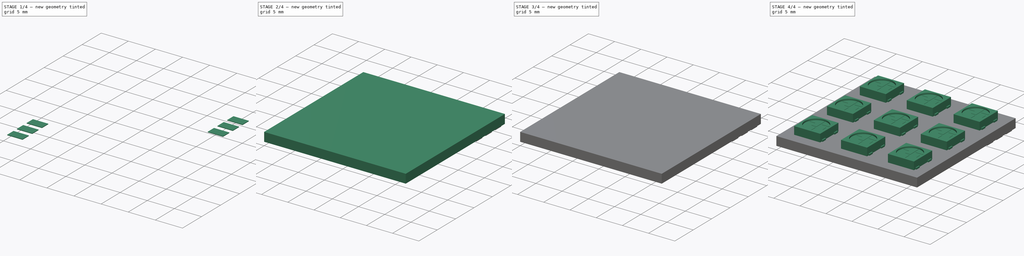
[diagram: build sequence overview — one tinted view per stage of 4, left to right]
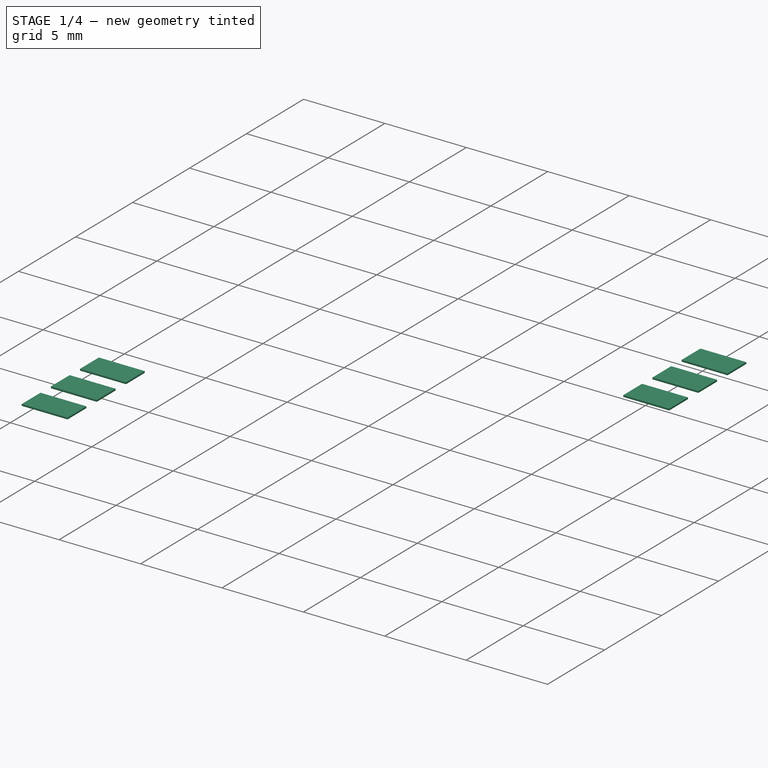
[diagram: stage 1 of 4 — iso view after this stage's code; geometry added in this stage tinted green]
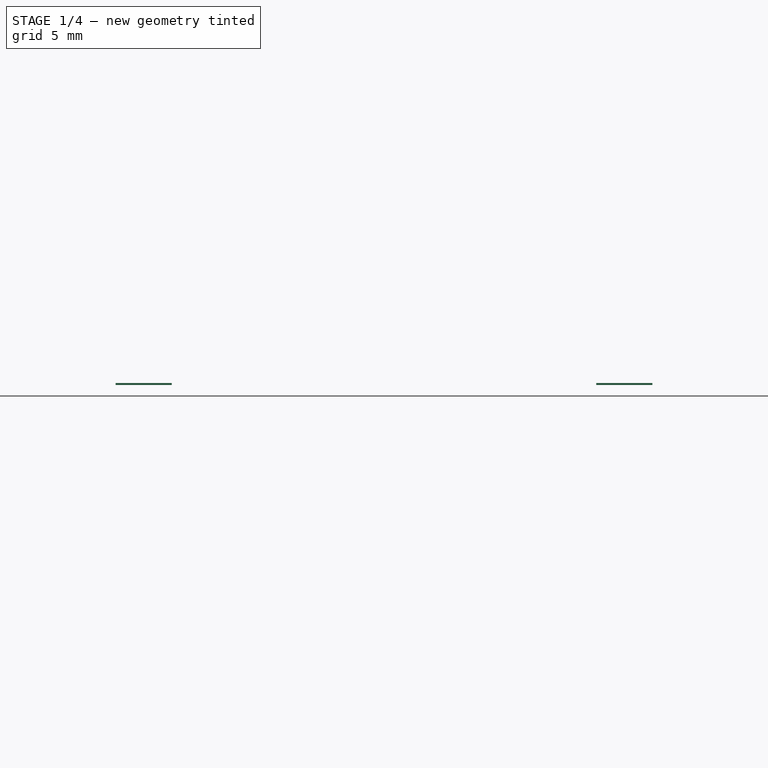
[diagram: stage 1 of 4 — front view after this stage's code; geometry added in this stage tinted green]
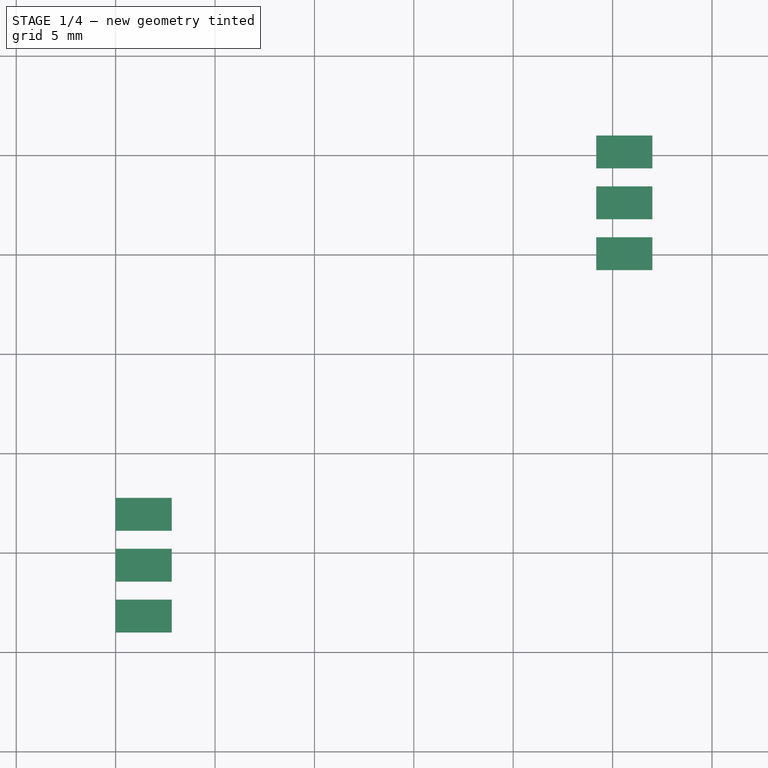
[diagram: stage 1 of 4 — top view after this stage's code; geometry added in this stage tinted green]
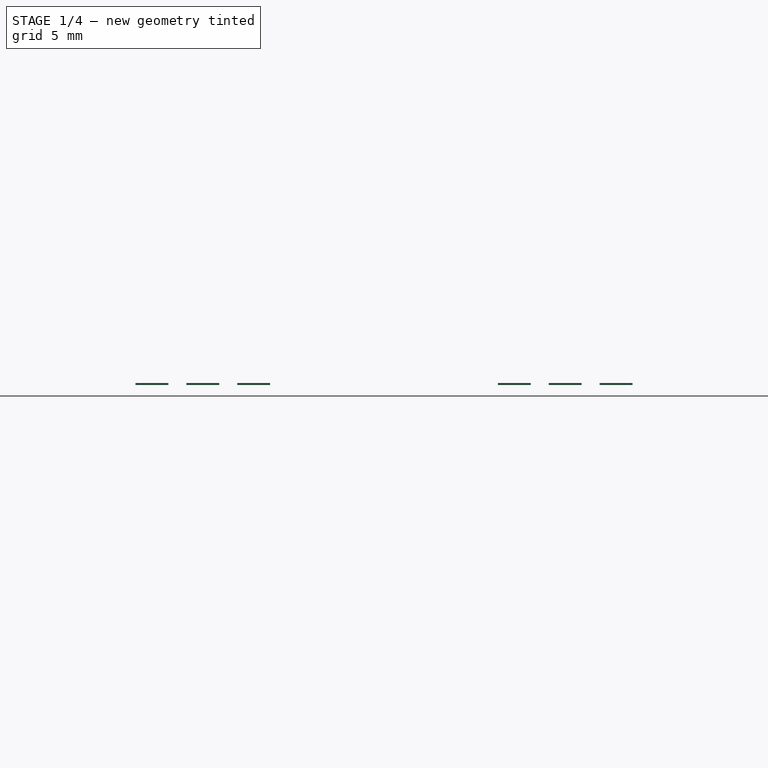
[diagram: stage 1 of 4 — right view after this stage's code; geometry added in this stage tinted green]
FCSTD DOCUMENT  (FreeCAD 0.16R6551 (Git))
Label: NeoPixel_matrix
License: All rights reserved
LicenseURL: http://en.wikipedia.org/wiki/All_rights_reserved
objects: Sketcher::SketchObject×6, PartDesign::Pad×5, Part::FeaturePython×3, PartDesign::Pocket×1, Spreadsheet::Sheet×1, Part::MultiFuse×1
note: 22 computed .brp shape members not serialized (recipe doc carries the construction recipe); baked Part::Feature solids carry a one-line shape summary decoded from their .brp

FEATURE [PartDesign::Pad] Pad004
  Length = 0.1
  Length2 = 100
  Reversed = true
  Sketch = -> Sketch005
  Type = 0
FEATURE [Part::FeaturePython] Array002  # Draft array (typed FeaturePython)
  Angle = 360
  ArrayType = 1
  Axis = (0,0,1)
  Base = -> Pad004
  Center = (13.5,13.5,0)
  Fuse = false
  IntervalAxis = (0,0,0)
  IntervalX = (1,0,0)
  IntervalY = (0,1,0)
  IntervalZ = (0,0,0)
  NumberPolar = 2
  NumberX = 1
  NumberY = 1
  NumberZ = 1
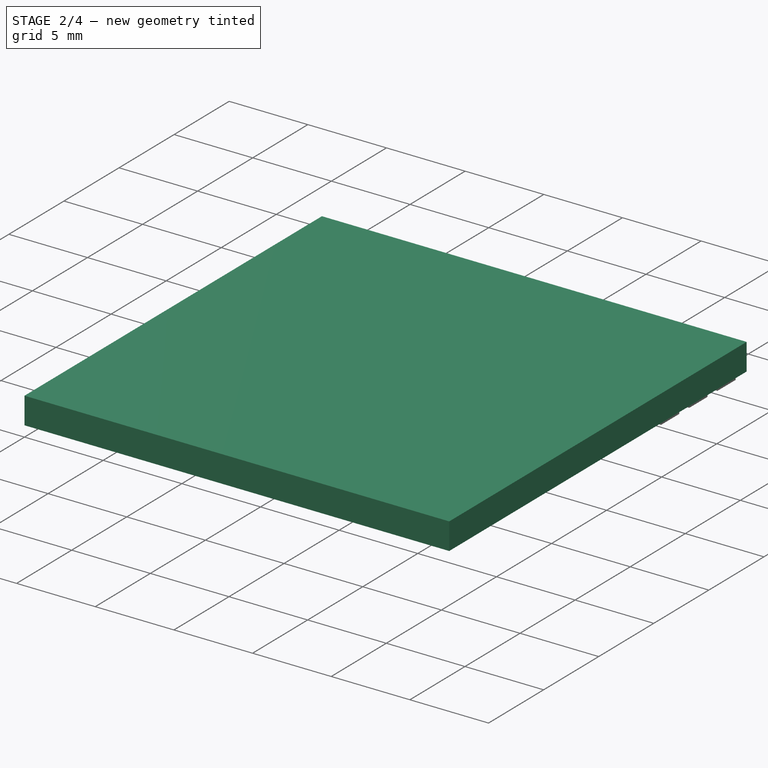
[diagram: stage 2 of 4 — iso view after this stage's code; geometry added in this stage tinted green]
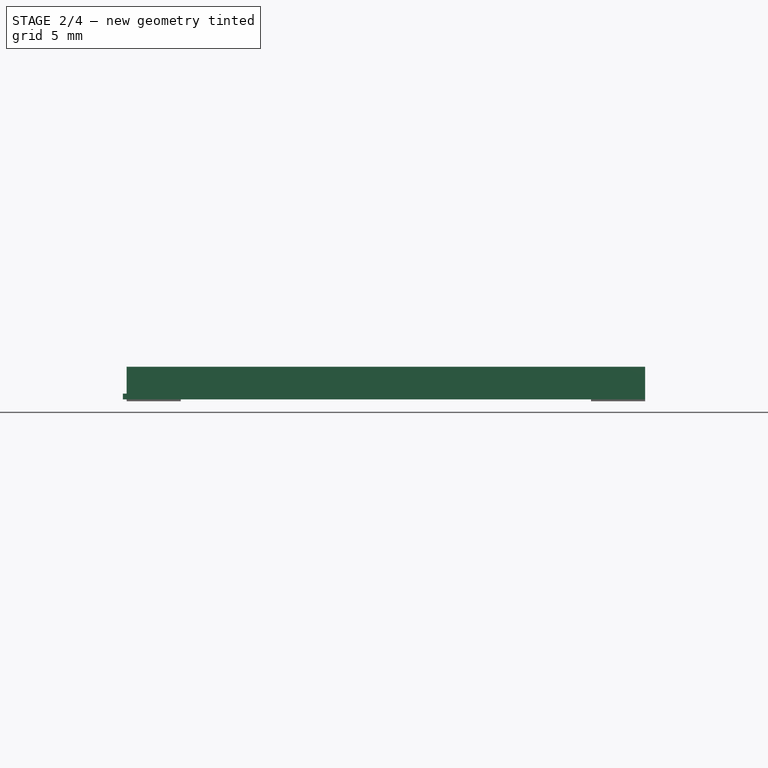
[diagram: stage 2 of 4 — front view after this stage's code; geometry added in this stage tinted green]
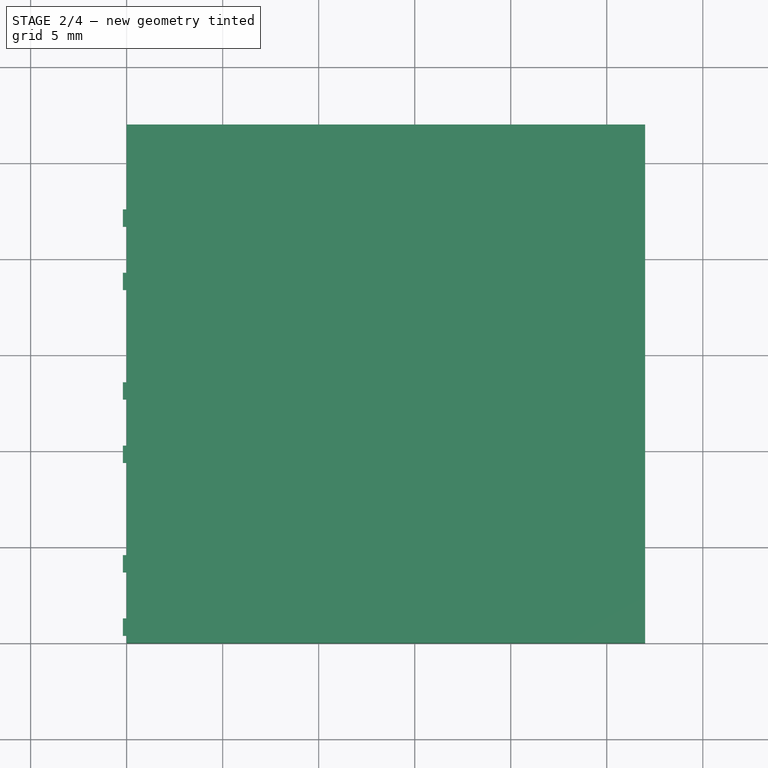
[diagram: stage 2 of 4 — top view after this stage's code; geometry added in this stage tinted green]
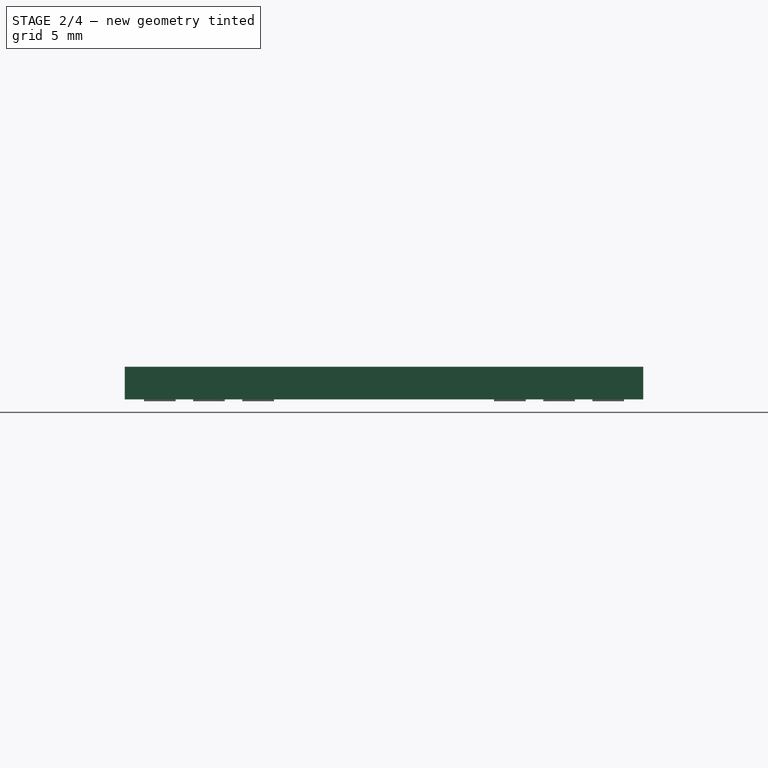
[diagram: stage 2 of 4 — right view after this stage's code; geometry added in this stage tinted green]
FEATURE [Sketcher::SketchObject] Sketch002
  sketch-geometry (16):
    g0: LineSegment StartX=-0.2 StartY=4.6 StartZ=0 EndX=0.7 EndY=4.6 EndZ=0
    g1: LineSegment StartX=0.7 StartY=4.6 StartZ=0 EndX=0.7 EndY=3.7 EndZ=0
    g2: LineSegment StartX=0.7 StartY=3.7 StartZ=0 EndX=-0.2 EndY=3.7 EndZ=0
    g3: LineSegment StartX=-0.2 StartY=3.7 StartZ=0 EndX=-0.2 EndY=4.6 EndZ=0
    g4: LineSegment StartX=-0.2 StartY=1.3 StartZ=0 EndX=0.7 EndY=1.3 EndZ=0
    g5: LineSegment StartX=0.7 StartY=1.3 StartZ=0 EndX=0.7 EndY=0.4 EndZ=0
    g6: LineSegment StartX=0.7 StartY=0.4 StartZ=0 EndX=-0.2 EndY=0.4 EndZ=0
    g7: LineSegment StartX=-0.2 StartY=0.4 StartZ=0 EndX=-0.2 EndY=1.3 EndZ=0
    g8: LineSegment StartX=4.3 StartY=4.6 StartZ=0 EndX=5.2 EndY=4.6 EndZ=0
    g9: LineSegment StartX=5.2 StartY=4.6 StartZ=0 EndX=5.2 EndY=3.7 EndZ=0
    g10: LineSegment StartX=5.2 StartY=3.7 StartZ=0 EndX=4.3 EndY=3.7 EndZ=0
    g11: LineSegment StartX=4.3 StartY=3.7 StartZ=0 EndX=4.3 EndY=4.6 EndZ=0
    g12: LineSegment StartX=4.3 StartY=1.3 StartZ=0 EndX=5.2 EndY=1.3 EndZ=0
    g13: LineSegment StartX=5.2 StartY=1.3 StartZ=0 EndX=5.2 EndY=0.4 EndZ=0
    g14: LineSegment StartX=5.2 StartY=0.4 StartZ=0 EndX=4.3 EndY=0.4 EndZ=0
    g15: LineSegment StartX=4.3 StartY=0.4 StartZ=0 EndX=4.3 EndY=1.3 EndZ=0
  constraints (48):
    c: Coincident(g0,g1)
    c: Coincident(g1,g2)
    c: Coincident(g2,g3)
    c: Coincident(g3,g0)
    c: Horizontal(g0)
    c: Horizontal(g2)
    c: Vertical(g1)
    c: Vertical(g3)
    c: DistanceX(g0) = 0.9
    c: Coincident(g4,g5)
    c: Coincident(g5,g6)
    c: Coincident(g6,g7)
    c: Coincident(g7,g4)
    c: Horizontal(g4)
    c: Horizontal(g6)
    c: Vertical(g5)
    c: Vertical(g7)
    c: Equal(g0,g3)
    c: Equal(g4,g2)
    c: Equal(g7,g4)
    c: DistanceY(g0,g6) = -4.2
    c: Coincident(g8,g9)
    c: Coincident(g9,g10)
    c: Coincident(g10,g11)
    c: Coincident(g11,g8)
    c: Horizontal(g8)
    c: Horizontal(g10)
    c: Vertical(g9)
    c: Vertical(g11)
    c: Coincident(g12,g13)
    c: Coincident(g13,g14)
    c: Coincident(g14,g15)
    c: Coincident(g15,g12)
    c: Horizontal(g12)
    c: Horizontal(g14)
    c: Vertical(g13)
    c: Vertical(g15)
    c: Equal(g8,g0)
    c: Equal(g11,g8)
    c: Equal(g12,g8)
    c: Equal(g15,g12)
    c: DistanceY(g13,g8) = 4.2
    c: DistanceX(g6,g13) = 5.4
    c: DistanceX(g0,g8) = 5.4
    c: DistanceY(g6,g14) = 0
    c: DistanceY(g-1,g5) = 0.4
    c: DistanceX(g-1,g5) = 0.7
    c: DistanceX(g1,g4) = 0
FEATURE [PartDesign::Pad] Pad001
  Length = 0.3
  Length2 = 100
  Sketch = -> Sketch002
  Type = 0
FEATURE [Part::FeaturePython] Array001  # Draft array (typed FeaturePython)
  Angle = 360
  ArrayType = 0
  Axis = (0,0,1)
  Base = -> Pad001
  Center = (0,0,0)
  Fuse = false
  IntervalAxis = (0,0,0)
  IntervalX = (9,0,0)
  IntervalY = (0,9,0)
  IntervalZ = (0,0,0)
  NumberPolar = 1
  NumberX = 3
  NumberY = 3
  NumberZ = 1
FEATURE [PartDesign::Pad] Pad003  label="PCB"
  Length = 1.7
  Length2 = 100
  Sketch = -> Sketch004
  Type = 0
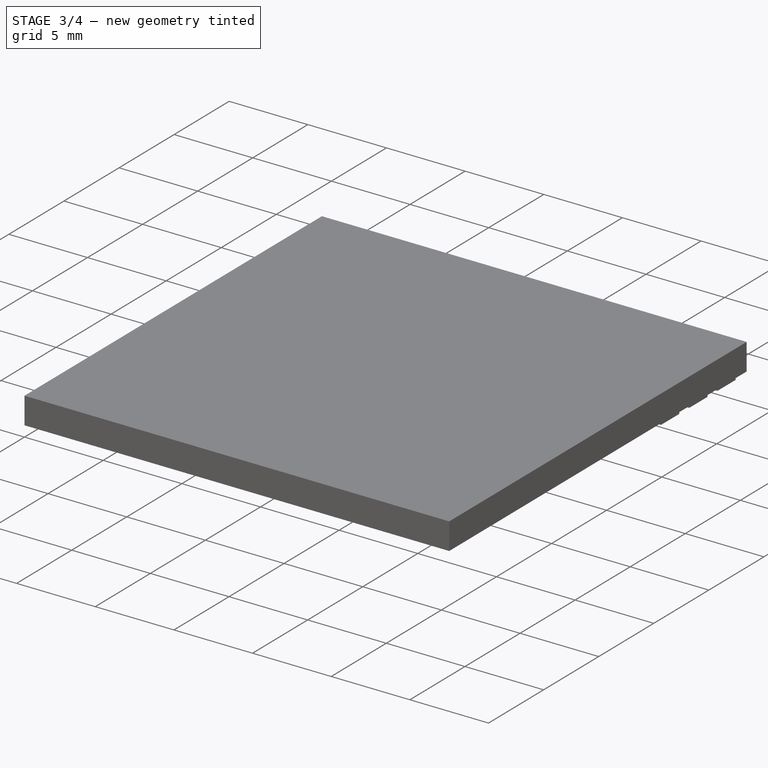
[diagram: stage 3 of 4 — iso view after this stage's code; geometry added in this stage tinted green]
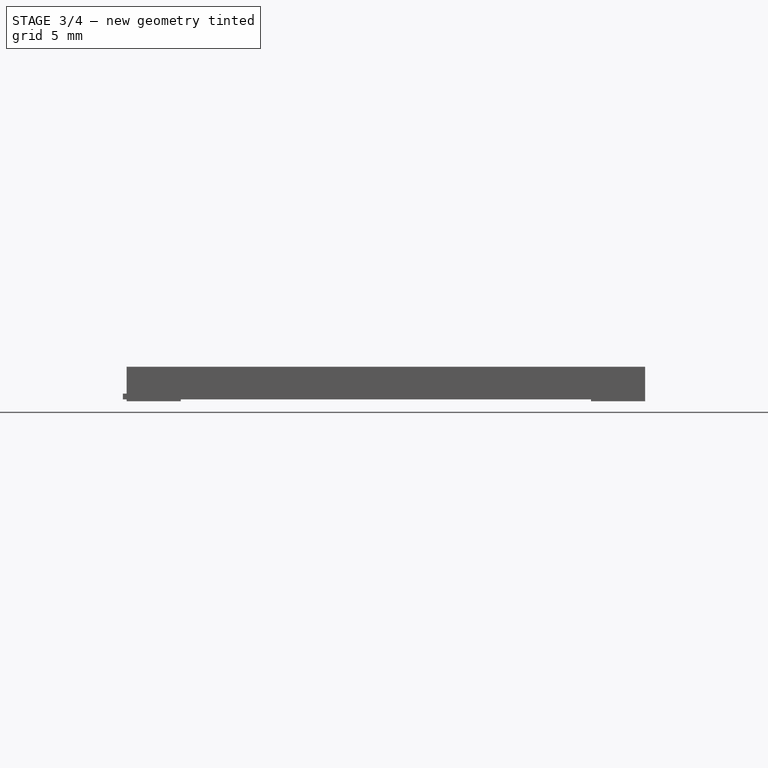
[diagram: stage 3 of 4 — front view after this stage's code; geometry added in this stage tinted green]
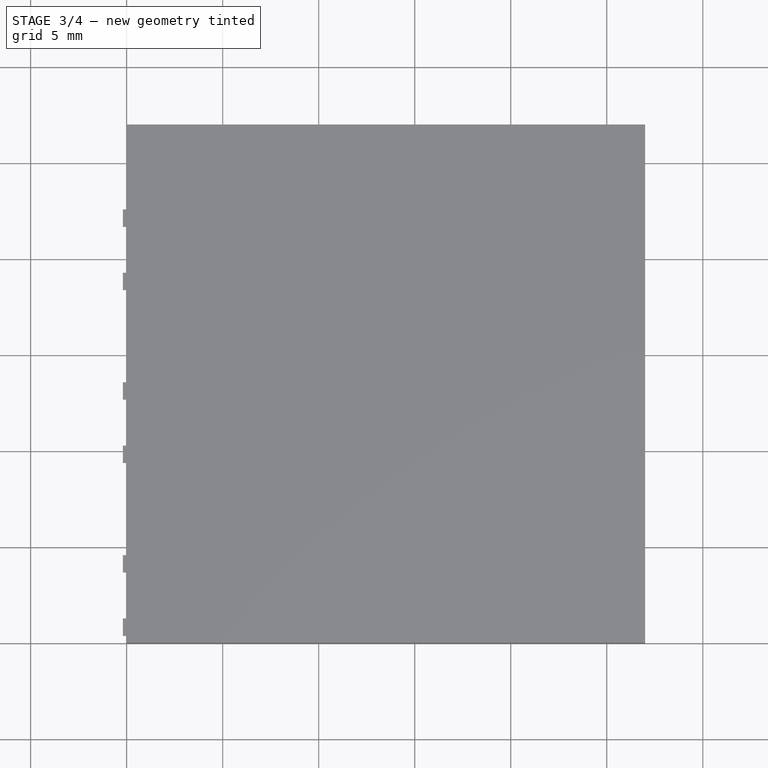
[diagram: stage 3 of 4 — top view after this stage's code; geometry added in this stage tinted green]
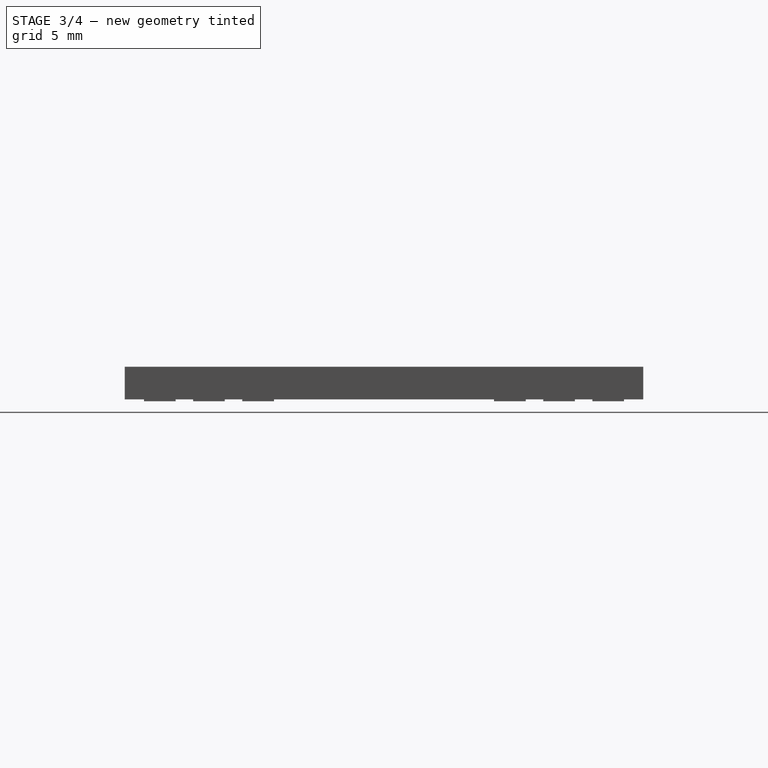
[diagram: stage 3 of 4 — right view after this stage's code; geometry added in this stage tinted green]
FEATURE [Sketcher::SketchObject] Sketch
  sketch-geometry (4):
    g0: LineSegment StartX=0 StartY=0 StartZ=0 EndX=5 EndY=0 EndZ=0
    g1: LineSegment StartX=5 StartY=0 StartZ=0 EndX=5 EndY=5 EndZ=0
    g2: LineSegment StartX=5 StartY=5 StartZ=0 EndX=0 EndY=5 EndZ=0
    g3: LineSegment StartX=0 StartY=5 StartZ=0 EndX=0 EndY=0 EndZ=0
  constraints (11):
    c: Coincident(g0,g1)
    c: Coincident(g1,g2)
    c: Coincident(g2,g3)
    c: Coincident(g3,g0)
    c: Horizontal(g0)
    c: Horizontal(g2)
    c: Vertical(g1)
    c: Vertical(g3)
    c: Coincident(g0,g-1)
    c: DistanceX(g2) = -5
    c: DistanceY(g3) = -5
FEATURE [PartDesign::Pad] Pad
  Length = 1.5
  Length2 = 100
  Sketch = -> Sketch
  Type = 0
FEATURE [Sketcher::SketchObject] Sketch001
  ExternalGeometry = -> [Pad]
  Placement = pos=(0,0,1.5) rot=(0,0,1;0rad)
  Support = -> Pad [Face6]
  sketch-geometry (1):
    g0: Circle CenterX=2.5 CenterY=2.5 CenterZ=0 NormalX=0 NormalY=0 NormalZ=1 Radius=2.2
  constraints (2):
    c: Symmetric(g-1,g-3,g0)
    c: Radius(g0) = 2.2
FEATURE [PartDesign::Pocket] Pocket
  Length = 0.3
  Sketch = -> Sketch001
  Type = 0
FEATURE [Sketcher::SketchObject] Sketch003
  Placement = pos=(0,0,1.2) rot=(0,0,1;0rad)
  Support = -> Pocket [Face8]
  sketch-geometry (17):
    g0: LineSegment StartX=0.673723 StartY=3.30561 StartZ=0 EndX=1.74616 EndY=3.30561 EndZ=0
    g1: LineSegment StartX=1.74616 StartY=3.30561 StartZ=0 EndX=1.74616 EndY=2.29778 EndZ=0
    g2: LineSegment StartX=1.74616 StartY=2.29778 StartZ=0 EndX=2.67646 EndY=2.29778 EndZ=0
    g3: LineSegment StartX=2.67646 StartY=2.29778 StartZ=0 EndX=2.67646 EndY=4.61062 EndZ=0
    g4: ArcOfCircle CenterX=2.7248 CenterY=2.34718 CenterZ=0 NormalX=0 NormalY=0 NormalZ=1 Radius=2.26395 StartAngle=1.59215 EndAngle=2.70446
    g5: LineSegment StartX=2.9478 StartY=4.53309 StartZ=0 EndX=2.9478 EndY=3.39605 EndZ=0
    g6: LineSegment StartX=2.9478 StartY=3.39605 StartZ=0 EndX=4.33034 EndY=3.39605 EndZ=0
    g7: ArcOfCircle CenterX=2.71716 CenterY=2.84362 CenterZ=0 NormalX=0 NormalY=0 NormalZ=1 Radius=1.70515 StartAngle=0.329935 EndAngle=1.43512
    g8: LineSegment StartX=0.634959 StartY=1.56128 StartZ=0 EndX=1.772 EndY=1.56128 EndZ=0
    g9: LineSegment StartX=1.772 StartY=1.56128 StartZ=0 EndX=1.772 EndY=2.0006 EndZ=0
    g10: LineSegment StartX=1.772 StartY=2.0006 StartZ=0 EndX=2.72815 EndY=2.0006 EndZ=0
    g11: LineSegment StartX=2.72815 StartY=2.0006 StartZ=0 EndX=2.72815 EndY=0.475928 EndZ=0
    g12: ArcOfCircle CenterX=2.56175 CenterY=2.71613 CenterZ=0 NormalX=0 NormalY=0 NormalZ=1 Radius=2.24638 StartAngle=3.68154 EndAngle=4.78653
    g13: LineSegment StartX=3.01241 StartY=0.553453 StartZ=0 EndX=3.01241 EndY=2.91798 EndZ=0
    g14: LineSegment StartX=3.01241 StartY=2.91798 StartZ=0 EndX=4.11068 EndY=2.91798 EndZ=0
    g15: LineSegment StartX=4.11068 StartY=2.91798 StartZ=0 EndX=4.11068 EndY=1.27702 EndZ=0
    g16: ArcOfCircle CenterX=2.87363 CenterY=1.95939 CenterZ=0 NormalX=0 NormalY=0 NormalZ=1 Radius=1.41277 StartAngle=4.81078 EndAngle=5.77911
  constraints (30):
    c: Horizontal(g0)
    c: Coincident(g0,g1)
    c: Vertical(g1)
    c: Coincident(g1,g2)
    c: Horizontal(g2)
    c: Coincident(g2,g3)
    c: Vertical(g3)
    c: Coincident(g4,g0)
    c: Coincident(g4,g3)
    c: Vertical(g5)
    c: Coincident(g5,g6)
    c: Horizontal(g6)
    c: Coincident(g7,g5)
    c: Coincident(g7,g6)
    c: Horizontal(g8)
    c: Coincident(g8,g9)
    c: Vertical(g9)
    c: Coincident(g9,g10)
    c: Horizontal(g10)
    c: Coincident(g10,g11)
    c: Vertical(g11)
    c: Coincident(g12,g8)
    c: Coincident(g12,g11)
    c: Vertical(g13)
    c: Coincident(g13,g14)
    c: Horizontal(g14)
    c: Coincident(g14,g15)
    c: Vertical(g15)
    c: Coincident(g16,g13)
    c: Coincident(g16,g15)
FEATURE [PartDesign::Pad] Pad002
  Length = 0.05
  Length2 = 100
  Sketch = -> Sketch003
  Type = 0
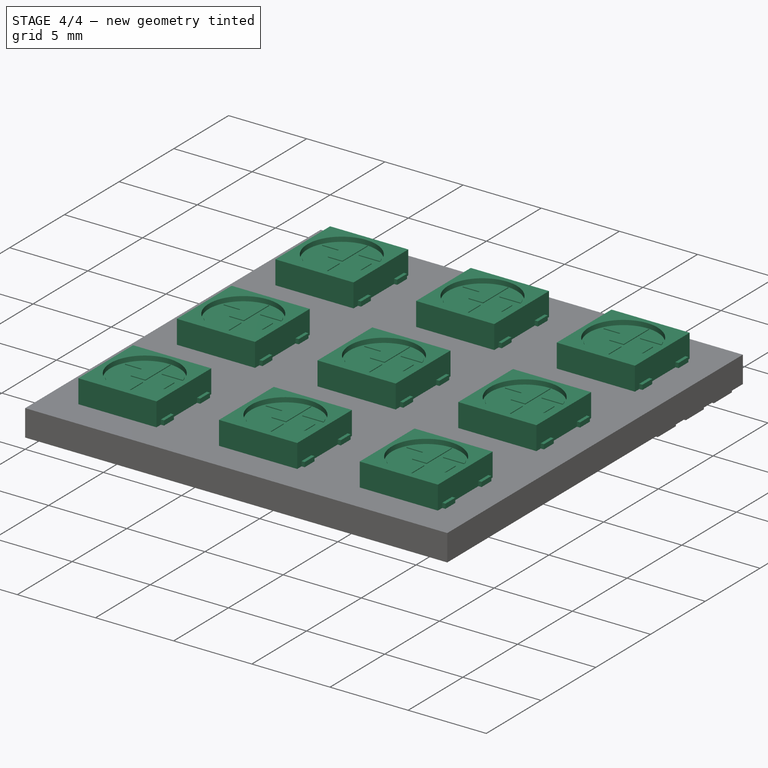
[diagram: stage 4 of 4 — iso view after this stage's code; geometry added in this stage tinted green]
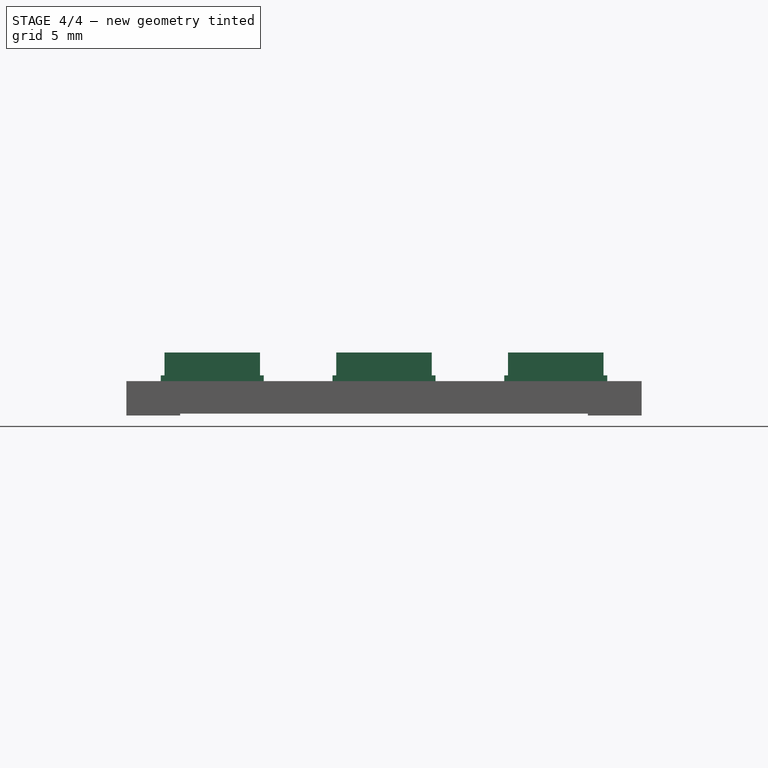
[diagram: stage 4 of 4 — front view after this stage's code; geometry added in this stage tinted green]
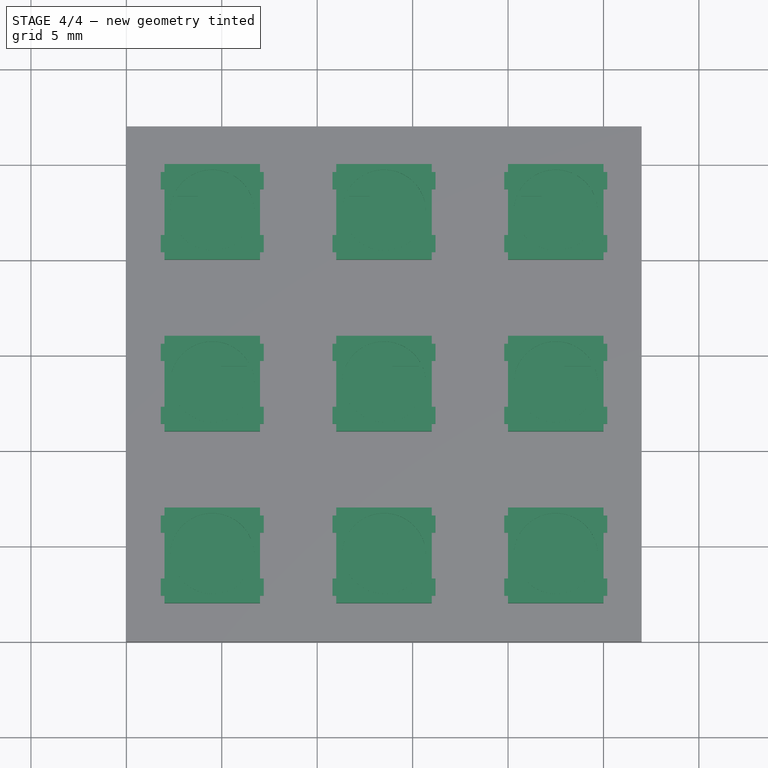
[diagram: stage 4 of 4 — top view after this stage's code; geometry added in this stage tinted green]
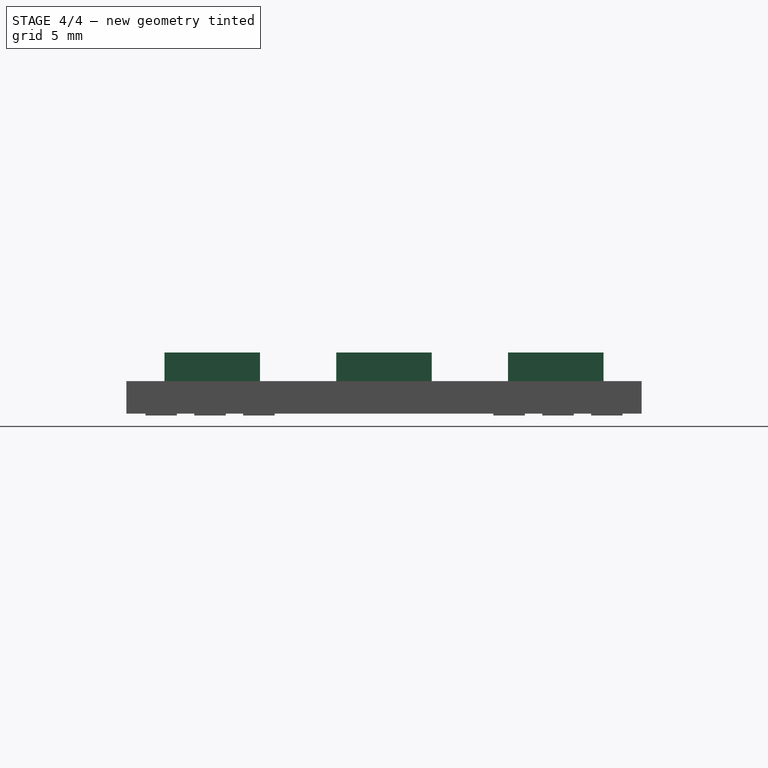
[diagram: stage 4 of 4 — right view after this stage's code; geometry added in this stage tinted green]
FEATURE [Part::FeaturePython] Array  # Draft array (typed FeaturePython)
  Angle = 360
  ArrayType = 0
  Axis = (0,0,1)
  Base = -> Pad002
  Center = (0,0,0)
  Fuse = false
  IntervalAxis = (0,1,0)
  IntervalX = (9,0,0)
  IntervalY = (0,9,0)
  IntervalZ = (0,0,0)
  NumberPolar = 1
  NumberX = 3
  NumberY = 3
  NumberZ = 1
FEATURE [Sketcher::SketchObject] Sketch004
  sketch-geometry (4):
    g0: LineSegment StartX=27 StartY=27 StartZ=0 EndX=0 EndY=27 EndZ=0
    g1: LineSegment StartX=0 StartY=27 StartZ=0 EndX=0 EndY=0 EndZ=0
    g2: LineSegment StartX=0 StartY=0 StartZ=0 EndX=27 EndY=0 EndZ=0
    g3: LineSegment StartX=27 StartY=0 StartZ=0 EndX=27 EndY=27 EndZ=0
  constraints (11):
    c: Coincident(g0,g1)
    c: Coincident(g1,g2)
    c: Coincident(g2,g3)
    c: Coincident(g3,g0)
    c: Horizontal(g0)
    c: Horizontal(g2)
    c: Vertical(g1)
    c: Vertical(g3)
    c: Coincident(g1,g-1)
    c: DistanceX(g0) = -27
    c: Equal(g3,g0)
FEATURE [Sketcher::SketchObject] Sketch005
  sketch-geometry (15):
    g0: LineSegment StartX=0 StartY=1 StartZ=0 EndX=2.82 EndY=1 EndZ=0
    g1: LineSegment StartX=2.82 StartY=1 StartZ=0 EndX=2.82 EndY=2.65 EndZ=0
    g2: LineSegment StartX=2.82 StartY=2.65 StartZ=0 EndX=0 EndY=2.65 EndZ=0
    g3: LineSegment StartX=0 StartY=2.65 StartZ=0 EndX=0 EndY=1 EndZ=0
    g4: LineSegment StartX=0 StartY=5.21 StartZ=0 EndX=2.82 EndY=5.21 EndZ=0
    g5: LineSegment StartX=2.82 StartY=5.21 StartZ=0 EndX=2.82 EndY=3.56 EndZ=0
    g6: LineSegment StartX=2.82 StartY=3.56 StartZ=0 EndX=0 EndY=3.56 EndZ=0
    g7: LineSegment StartX=0 StartY=3.56 StartZ=0 EndX=0 EndY=5.21 EndZ=0
    g8: LineSegment StartX=0 StartY=7.77 StartZ=0 EndX=2.82 EndY=7.77 EndZ=0
    g9: LineSegment StartX=2.82 StartY=7.77 StartZ=0 EndX=2.82 EndY=6.12 EndZ=0
    g10: LineSegment StartX=2.82 StartY=6.12 StartZ=0 EndX=0 EndY=6.12 EndZ=0
    g11: LineSegment StartX=0 StartY=6.12 StartZ=0 EndX=0 EndY=7.77 EndZ=0
    g12: GeomPoint [constr] X=0 Y=1.825 Z=0
    g13: GeomPoint [constr] X=0 Y=4.385 Z=0
    g14: GeomPoint [constr] X=0 Y=6.945 Z=0
  constraints (39):
    c: Coincident(g0,g1)
    c: Coincident(g1,g2)
    c: Coincident(g2,g3)
    c: Coincident(g3,g0)
    c: Horizontal(g0)
    c: Horizontal(g2)
    c: Vertical(g1)
    c: Vertical(g3)
    c: DistanceY(g-1,g0) = 1
    c: DistanceY(g3) = -1.65
    c: PointOnObject(g0,g-2)
    c: DistanceX(g2) = -2.82
    c: Coincident(g4,g5)
    c: Coincident(g5,g6)
    c: Coincident(g6,g7)
    c: Coincident(g7,g4)
    c: Horizontal(g4)
    c: Horizontal(g6)
    c: Vertical(g5)
    c: Vertical(g7)
    c: Coincident(g8,g9)
    c: Coincident(g9,g10)
    c: Coincident(g10,g11)
    c: Coincident(g11,g8)
    c: Horizontal(g8)
    c: Horizontal(g10)
    c: Vertical(g9)
    c: Vertical(g11)
    c: Equal(g2,g6)
    c: Equal(g5,g1)
    c: Equal(g10,g4)
    c: Equal(g9,g5)
    c: DistanceX(g0,g8) = 0
    c: DistanceX(g6,g0) = 0
    c: Symmetric(g0,g2,g12)
    c: Symmetric(g6,g4,g13)
    c: DistanceY(g12,g13) = 2.56
    c: Symmetric(g10,g8,g14)
    c: DistanceY(g13,g14) = 2.56
FEATURE [Spreadsheet::Sheet] Spreadsheet
  cells = A1=Fritzing Scale (inchest); B1=Pixels; C1=Px/In; A2=0.08599999999999999; B2=7.7; C2==B2 / A2; A5=PCB (mm); B5=mm per inch; C5=PCB (inch); E5=PCB (px); A6=27; B6=25.4; C6==A6 / B6; E6==A6 / B11 * C11; F6=<- check this; G6=Smoething still off; F9=73 precent; A10=72% scale from Freecad SVG into Inkscape; B10=Paste MM; C10=Template PX; B11=10; C11=35.433; B12=F"; C12=Pixels; D12=Actual size in inkscape in inches; E12=Actual Size In Inkscape (mm); F12=1 cm in Inkscape in Pixels; A13=Fritzing scale in Inkscape; B13=1; C13=77; D13=0.8599999999999999; E13=21.73; F13=35.43; A15=I need to convert all numbers to F"; D15=Size in cm:; E15=2.7; B17==E15 / 2.45; C17==B17 * 77; D17=Pixels in Inkscape:; E17==D13 / B13 * C17; D18=Scale transform in Inkscape:; E18==E17 / F13 * E15
FEATURE [Part::MultiFuse] Fusion
  Placement = pos=(2,2,1.7) rot=(0,0,1;0rad)
  Shapes = -> [Array,Array001]
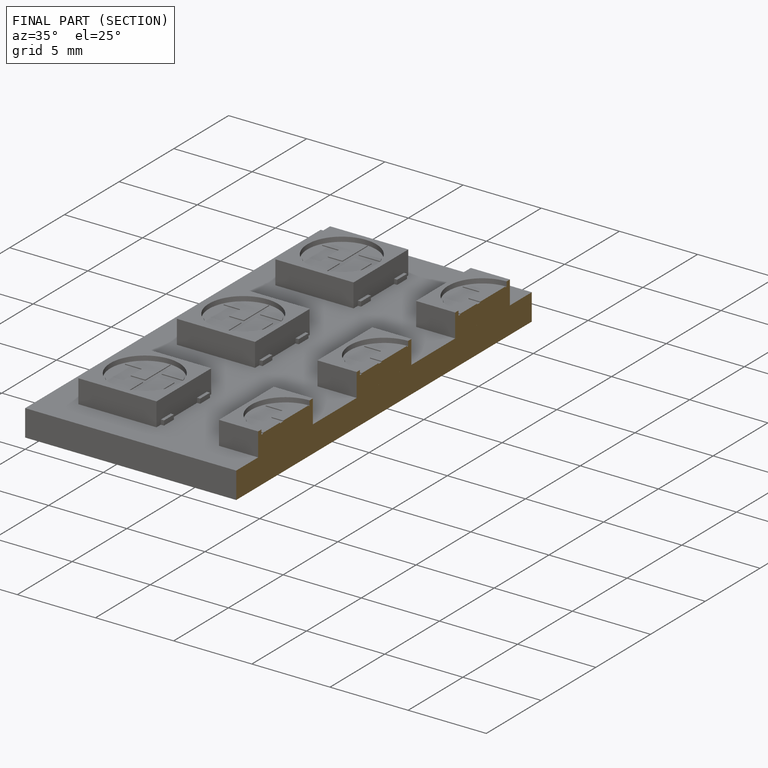
[diagram: finished part — half-section view (interior)]
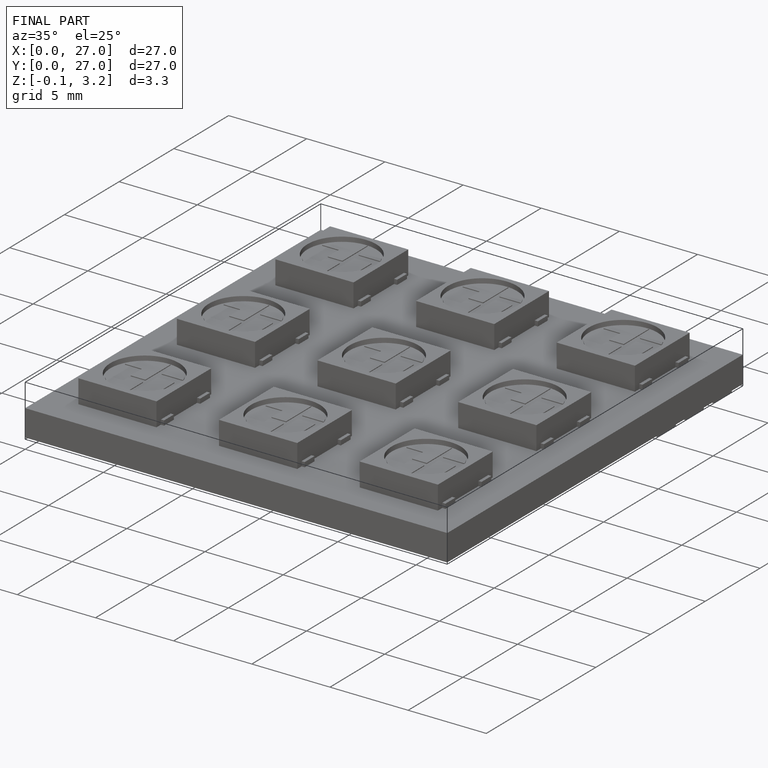
[diagram: finished part — iso view with bounding-box wireframe]
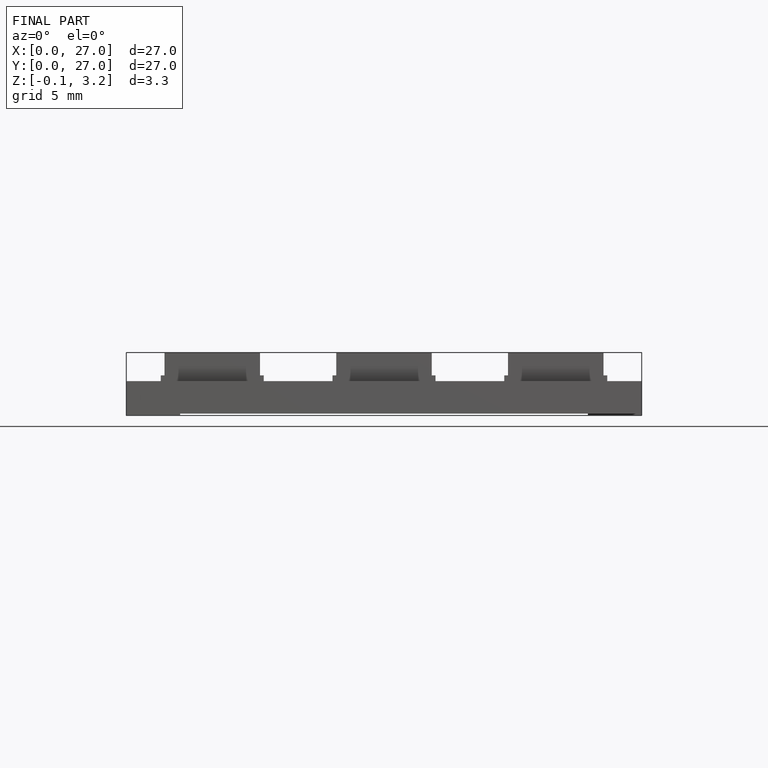
[diagram: finished part — front view with bounding-box wireframe]
